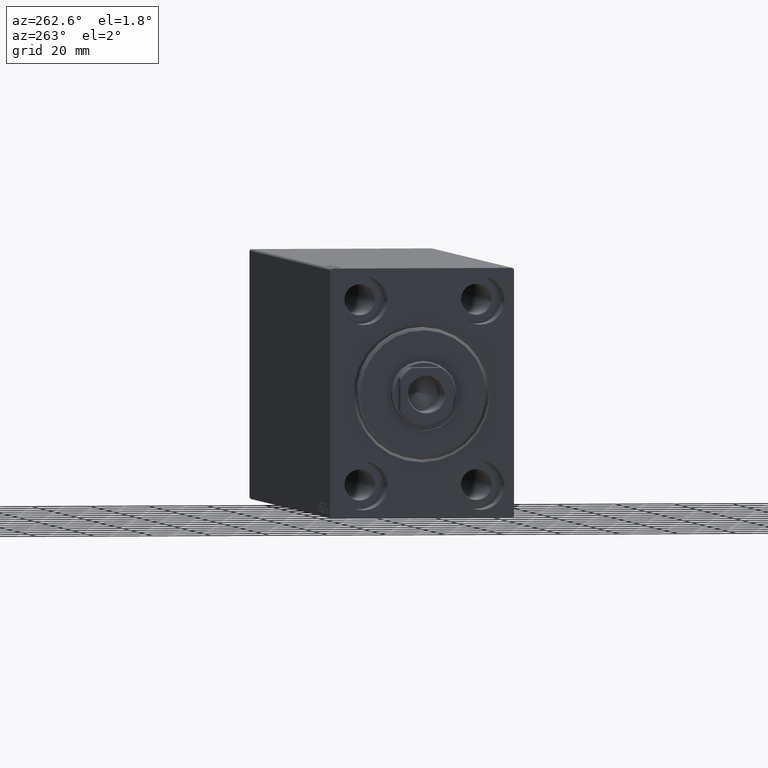
[diagram: clean part render]
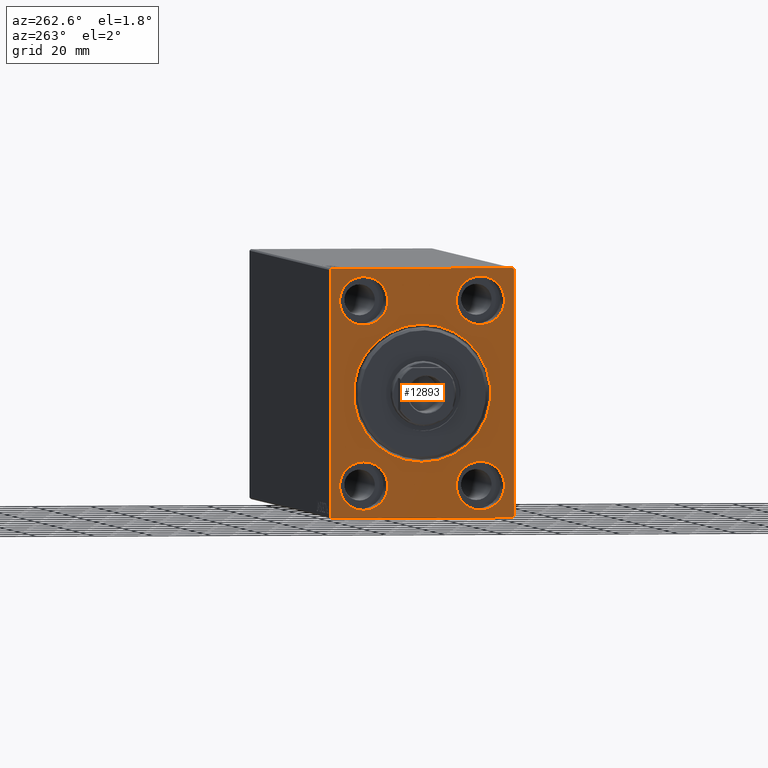
[diagram: same view with one face highlighted and labeled with its STEP entity id]
A machine part, auxiliary view. The second image highlights one B-rep face of the part: STEP entity #12893.
In plain terms, the highlighted planar face has unit normal (1, 0, 0).
Its self-contained STEP definition (entity closure, byte-faithful):
#273 = CARTESIAN_POINT ( 'NONE',  ( 0.000000000000000000, 0.000000000000000000, 0.000000000000000000 ) ) ;
#313 = FACE_BOUND ( 'NONE', #11136, .T. ) ;
#1082 = DIRECTION ( 'NONE',  ( 0.000000000000000000, -0.7071067811865474617, -0.7071067811865474617 ) ) ;
#1209 = CIRCLE ( 'NONE', #9684, 8.249999999999992895 ) ;
#1255 = EDGE_CURVE ( 'NONE', #2972, #42847, #24063, .T. ) ;
#1299 = CARTESIAN_POINT ( 'NONE',  ( 0.000000000000000000, 31.50000000000001421, -42.00000000000000711 ) ) ;
#1509 = ORIENTED_EDGE ( 'NONE', *, *, #39388, .T. ) ;
#1784 = ORIENTED_EDGE ( 'NONE', *, *, #20194, .F. ) ;
#1798 = VECTOR ( 'NONE', #36082, 1000.000000000000000 ) ;
#2403 = CIRCLE ( 'NONE', #21511, 8.249999999999992895 ) ;
#2769 = CIRCLE ( 'NONE', #26791, 8.250000000000000000 ) ;
#2916 = CARTESIAN_POINT ( 'NONE',  ( 0.000000000000000000, -31.00000000000000000, -42.50000000000000711 ) ) ;
#2972 = VERTEX_POINT ( 'NONE', #21490 ) ;
#3643 = VERTEX_POINT ( 'NONE', #5543 ) ;
#3817 = CIRCLE ( 'NONE', #11612, 8.250000000000000000 ) ;
#4063 = CARTESIAN_POINT ( 'NONE',  ( 0.000000000000000000, 0.000000000000000000, 0.000000000000000000 ) ) ;
#4126 = CARTESIAN_POINT ( 'NONE',  ( 0.000000000000000000, 31.00000000000001421, -42.50000000000000711 ) ) ;
#4139 = DIRECTION ( 'NONE',  ( -1.000000000000000000, 0.000000000000000000, 0.000000000000000000 ) ) ;
#4269 = CARTESIAN_POINT ( 'NONE',  ( 0.000000000000000000, 19.99999999999999645, -23.24999999999999289 ) ) ;
#4337 = VECTOR ( 'NONE', #37705, 1000.000000000000114 ) ;
#4839 = DIRECTION ( 'NONE',  ( 0.000000000000000000, 0.000000000000000000, 1.000000000000000000 ) ) ;
#5156 = AXIS2_PLACEMENT_3D ( 'NONE', #38143, #32169, #22015 ) ;
#5237 = ORIENTED_EDGE ( 'NONE', *, *, #15820, .F. ) ;
#5543 = CARTESIAN_POINT ( 'NONE',  ( 0.000000000000000000, -19.99999999999999645, 23.25000000000000355 ) ) ;
#5733 = CARTESIAN_POINT ( 'NONE',  ( 0.000000000000000000, 0.000000000000000000, 0.000000000000000000 ) ) ;
#5954 = DIRECTION ( 'NONE',  ( -1.000000000000000000, 0.000000000000000000, 0.000000000000000000 ) ) ;
#6346 = AXIS2_PLACEMENT_3D ( 'NONE', #273, #10239, #37189 ) ;
#6728 = DIRECTION ( 'NONE',  ( -1.000000000000000000, 0.000000000000000000, 0.000000000000000000 ) ) ;
#6923 = DIRECTION ( 'NONE',  ( 0.000000000000000000, 0.000000000000000000, 1.000000000000000000 ) ) ;
#7371 = DIRECTION ( 'NONE',  ( -1.000000000000000000, 0.000000000000000000, 0.000000000000000000 ) ) ;
#7950 = CARTESIAN_POINT ( 'NONE',  ( 0.000000000000000000, 31.00000000000000000, 42.50000000000000711 ) ) ;
#8468 = EDGE_CURVE ( 'NONE', #20942, #17203, #13633, .T. ) ;
#9009 = ORIENTED_EDGE ( 'NONE', *, *, #37509, .T. ) ;
#9243 = VERTEX_POINT ( 'NONE', #9712 ) ;
#9424 = VECTOR ( 'NONE', #1082, 1000.000000000000114 ) ;
#9592 = CARTESIAN_POINT ( 'NONE',  ( 0.000000000000000000, 19.99999999999999645, -39.74999999999999289 ) ) ;
#9684 = AXIS2_PLACEMENT_3D ( 'NONE', #20372, #41142, #17501 ) ;
#9707 = EDGE_LOOP ( 'NONE', ( #1509, #9009 ) ) ;
#9712 = CARTESIAN_POINT ( 'NONE',  ( 0.000000000000000000, 20.00000000000000355, 23.25000000000000355 ) ) ;
#9832 = CARTESIAN_POINT ( 'NONE',  ( 0.000000000000000000, -31.00000000000000000, 42.49999999999999289 ) ) ;
#10239 = DIRECTION ( 'NONE',  ( 1.000000000000000000, 0.000000000000000000, 0.000000000000000000 ) ) ;
#10491 = PLANE ( 'NONE',  #31316 ) ;
#10497 = AXIS2_PLACEMENT_3D ( 'NONE', #27067, #6728, #33695 ) ;
#10600 = CARTESIAN_POINT ( 'NONE',  ( 0.000000000000000000, 19.99999999999999645, -31.49999999999999289 ) ) ;
#11108 = ORIENTED_EDGE ( 'NONE', *, *, #27688, .F. ) ;
#11136 = EDGE_LOOP ( 'NONE', ( #11108, #38656 ) ) ;
#11612 = AXIS2_PLACEMENT_3D ( 'NONE', #10600, #14576, #27831 ) ;
#12040 = EDGE_CURVE ( 'NONE', #9243, #12889, #24216, .T. ) ;
#12525 = ORIENTED_EDGE ( 'NONE', *, *, #37504, .F. ) ;
#12828 = DIRECTION ( 'NONE',  ( 1.000000000000000000, 0.000000000000000000, 0.000000000000000000 ) ) ;
#12889 = VERTEX_POINT ( 'NONE', #37229 ) ;
#12893 = ADVANCED_FACE ( 'NONE', ( #27499, #31033, #40989, #27727, #313, #40767 ), #10491, .F. ) ;
#13284 = EDGE_CURVE ( 'NONE', #35820, #25613, #22302, .T. ) ;
#13474 = AXIS2_PLACEMENT_3D ( 'NONE', #37213, #7371, #6923 ) ;
#13633 = LINE ( 'NONE', #40369, #4337 ) ;
#14576 = DIRECTION ( 'NONE',  ( -1.000000000000000000, 0.000000000000000000, 0.000000000000000000 ) ) ;
#15009 = EDGE_CURVE ( 'NONE', #33782, #21458, #15944, .T. ) ;
#15193 = ORIENTED_EDGE ( 'NONE', *, *, #26500, .T. ) ;
#15336 = EDGE_CURVE ( 'NONE', #40275, #3643, #2403, .T. ) ;
#15439 = EDGE_LOOP ( 'NONE', ( #28966, #40373 ) ) ;
#15498 = LINE ( 'NONE', #32512, #18670 ) ;
#15652 = ORIENTED_EDGE ( 'NONE', *, *, #24789, .F. ) ;
#15820 = EDGE_CURVE ( 'NONE', #20942, #25613, #15498, .T. ) ;
#15944 = LINE ( 'NONE', #42908, #25689 ) ;
#16439 = LINE ( 'NONE', #18881, #25232 ) ;
#16777 = AXIS2_PLACEMENT_3D ( 'NONE', #34428, #4139, #41719 ) ;
#17203 = VERTEX_POINT ( 'NONE', #24702 ) ;
#17501 = DIRECTION ( 'NONE',  ( 0.000000000000000000, 0.000000000000000000, 1.000000000000000000 ) ) ;
#17536 = CIRCLE ( 'NONE', #10497, 8.249999999999992895 ) ;
#18111 = EDGE_CURVE ( 'NONE', #37570, #21458, #43419, .T. ) ;
#18670 = VECTOR ( 'NONE', #28978, 1000.000000000000000 ) ;
#18881 = CARTESIAN_POINT ( 'NONE',  ( 0.000000000000000000, -31.50000000000000000, 42.49999999999999289 ) ) ;
#19240 = DIRECTION ( 'NONE',  ( 0.000000000000000000, 0.000000000000000000, -1.000000000000000000 ) ) ;
#20037 = EDGE_LOOP ( 'NONE', ( #20259, #21611 ) ) ;
#20194 = EDGE_CURVE ( 'NONE', #32077, #22949, #3817, .T. ) ;
#20259 = ORIENTED_EDGE ( 'NONE', *, *, #15336, .F. ) ;
#20279 = CARTESIAN_POINT ( 'NONE',  ( 0.000000000000000000, 2.877919977996285448E-15, -23.50000000000004619 ) ) ;
#20372 = CARTESIAN_POINT ( 'NONE',  ( 0.000000000000000000, -19.99999999999999645, 31.50000000000000000 ) ) ;
#20883 = DIRECTION ( 'NONE',  ( 1.000000000000000000, 0.000000000000000000, 0.000000000000000000 ) ) ;
#20942 = VERTEX_POINT ( 'NONE', #2916 ) ;
#21194 = CIRCLE ( 'NONE', #6346, 23.50000000000004619 ) ;
#21388 = ORIENTED_EDGE ( 'NONE', *, *, #26917, .F. ) ;
#21458 = VERTEX_POINT ( 'NONE', #9832 ) ;
#21490 = CARTESIAN_POINT ( 'NONE',  ( 0.000000000000000000, -20.00000000000000355, -39.74999999999999289 ) ) ;
#21511 = AXIS2_PLACEMENT_3D ( 'NONE', #42196, #35996, #4839 ) ;
#21611 = ORIENTED_EDGE ( 'NONE', *, *, #24947, .F. ) ;
#22015 = DIRECTION ( 'NONE',  ( 0.000000000000000000, 0.000000000000000000, 1.000000000000000000 ) ) ;
#22302 = LINE ( 'NONE', #1299, #9424 ) ;
#22303 = ORIENTED_EDGE ( 'NONE', *, *, #15009, .T. ) ;
#22596 = CARTESIAN_POINT ( 'NONE',  ( 0.000000000000000000, 31.50000000000001421, -42.50000000000000711 ) ) ;
#22949 = VERTEX_POINT ( 'NONE', #9592 ) ;
#23837 = CIRCLE ( 'NONE', #16777, 8.250000000000000000 ) ;
#24063 = CIRCLE ( 'NONE', #13474, 8.250000000000000000 ) ;
#24216 = CIRCLE ( 'NONE', #5156, 8.249999999999992895 ) ;
#24702 = CARTESIAN_POINT ( 'NONE',  ( 0.000000000000000000, -31.50000000000000000, -42.00000000000000711 ) ) ;
#24768 = ORIENTED_EDGE ( 'NONE', *, *, #8468, .T. ) ;
#24789 = EDGE_CURVE ( 'NONE', #35820, #25126, #31903, .T. ) ;
#24947 = EDGE_CURVE ( 'NONE', #3643, #40275, #1209, .T. ) ;
#25126 = VERTEX_POINT ( 'NONE', #43103 ) ;
#25232 = VECTOR ( 'NONE', #42530, 1000.000000000000000 ) ;
#25613 = VERTEX_POINT ( 'NONE', #4126 ) ;
#25689 = VECTOR ( 'NONE', #26091, 1000.000000000000114 ) ;
#26091 = DIRECTION ( 'NONE',  ( -0.000000000000000000, 0.7071067811865474617, 0.7071067811865474617 ) ) ;
#26163 = DIRECTION ( 'NONE',  ( 0.000000000000000000, -1.000000000000000000, -2.202823461557850341E-16 ) ) ;
#26500 = EDGE_CURVE ( 'NONE', #37570, #25126, #31382, .T. ) ;
#26791 = AXIS2_PLACEMENT_3D ( 'NONE', #36251, #5954, #36676 ) ;
#26917 = EDGE_CURVE ( 'NONE', #33782, #17203, #16439, .T. ) ;
#27067 = CARTESIAN_POINT ( 'NONE',  ( 0.000000000000000000, 20.00000000000000355, 31.50000000000000000 ) ) ;
#27491 = AXIS2_PLACEMENT_3D ( 'NONE', #5733, #12828, #19240 ) ;
#27499 = FACE_BOUND ( 'NONE', #9707, .T. ) ;
#27688 = EDGE_CURVE ( 'NONE', #42847, #2972, #23837, .T. ) ;
#27727 = FACE_BOUND ( 'NONE', #15439, .T. ) ;
#27831 = DIRECTION ( 'NONE',  ( 0.000000000000000000, 0.000000000000000000, 1.000000000000000000 ) ) ;
#28143 = CARTESIAN_POINT ( 'NONE',  ( 0.000000000000000000, -20.00000000000000355, -23.24999999999999289 ) ) ;
#28966 = ORIENTED_EDGE ( 'NONE', *, *, #30375, .F. ) ;
#28978 = DIRECTION ( 'NONE',  ( 0.000000000000000000, 1.000000000000000000, 0.000000000000000000 ) ) ;
#29918 = CARTESIAN_POINT ( 'NONE',  ( 0.000000000000000000, 31.50000000000000000, 42.50000000000000711 ) ) ;
#30323 = CIRCLE ( 'NONE', #27491, 23.50000000000004619 ) ;
#30375 = EDGE_CURVE ( 'NONE', #12889, #9243, #17536, .T. ) ;
#30679 = CARTESIAN_POINT ( 'NONE',  ( 0.000000000000000000, -31.50000000000000000, 41.99999999999999289 ) ) ;
#30808 = EDGE_LOOP ( 'NONE', ( #21388, #22303, #39848, #15193, #15652, #42583, #5237, #24768 ) ) ;
#31033 = FACE_BOUND ( 'NONE', #36619, .T. ) ;
#31130 = CARTESIAN_POINT ( 'NONE',  ( 0.000000000000000000, 31.50000000000001421, -42.00000000000000711 ) ) ;
#31316 = AXIS2_PLACEMENT_3D ( 'NONE', #4063, #20883, #34353 ) ;
#31382 = LINE ( 'NONE', #7950, #41382 ) ;
#31903 = LINE ( 'NONE', #22596, #1798 ) ;
#32040 = VECTOR ( 'NONE', #26163, 1000.000000000000000 ) ;
#32077 = VERTEX_POINT ( 'NONE', #4269 ) ;
#32169 = DIRECTION ( 'NONE',  ( -1.000000000000000000, 0.000000000000000000, 0.000000000000000000 ) ) ;
#32512 = CARTESIAN_POINT ( 'NONE',  ( 0.000000000000000000, -31.50000000000000000, -42.50000000000000711 ) ) ;
#33482 = VERTEX_POINT ( 'NONE', #20279 ) ;
#33695 = DIRECTION ( 'NONE',  ( 0.000000000000000000, 0.000000000000000000, 1.000000000000000000 ) ) ;
#33782 = VERTEX_POINT ( 'NONE', #30679 ) ;
#34353 = DIRECTION ( 'NONE',  ( 0.000000000000000000, 0.000000000000000000, -1.000000000000000000 ) ) ;
#34428 = CARTESIAN_POINT ( 'NONE',  ( 0.000000000000000000, -20.00000000000000355, -31.49999999999999289 ) ) ;
#34474 = DIRECTION ( 'NONE',  ( -0.000000000000000000, 0.7071067811865474617, -0.7071067811865474617 ) ) ;
#35820 = VERTEX_POINT ( 'NONE', #31130 ) ;
#35996 = DIRECTION ( 'NONE',  ( -1.000000000000000000, 0.000000000000000000, 0.000000000000000000 ) ) ;
#36082 = DIRECTION ( 'NONE',  ( 0.000000000000000000, -1.632680918566406300E-16, 1.000000000000000000 ) ) ;
#36251 = CARTESIAN_POINT ( 'NONE',  ( 0.000000000000000000, 19.99999999999999645, -31.49999999999999289 ) ) ;
#36619 = EDGE_LOOP ( 'NONE', ( #1784, #12525 ) ) ;
#36676 = DIRECTION ( 'NONE',  ( 0.000000000000000000, 0.000000000000000000, 1.000000000000000000 ) ) ;
#37189 = DIRECTION ( 'NONE',  ( 0.000000000000000000, 0.000000000000000000, -1.000000000000000000 ) ) ;
#37213 = CARTESIAN_POINT ( 'NONE',  ( 0.000000000000000000, -20.00000000000000355, -31.49999999999999289 ) ) ;
#37229 = CARTESIAN_POINT ( 'NONE',  ( 0.000000000000000000, 20.00000000000000355, 39.74999999999999289 ) ) ;
#37504 = EDGE_CURVE ( 'NONE', #22949, #32077, #2769, .T. ) ;
#37509 = EDGE_CURVE ( 'NONE', #33482, #39820, #30323, .T. ) ;
#37570 = VERTEX_POINT ( 'NONE', #40440 ) ;
#37578 = CARTESIAN_POINT ( 'NONE',  ( 0.000000000000000000, 0.000000000000000000, 23.50000000000004619 ) ) ;
#37705 = DIRECTION ( 'NONE',  ( -0.000000000000000000, -0.7071067811865474617, 0.7071067811865474617 ) ) ;
#38143 = CARTESIAN_POINT ( 'NONE',  ( 0.000000000000000000, 20.00000000000000355, 31.50000000000000000 ) ) ;
#38656 = ORIENTED_EDGE ( 'NONE', *, *, #1255, .F. ) ;
#39388 = EDGE_CURVE ( 'NONE', #39820, #33482, #21194, .T. ) ;
#39820 = VERTEX_POINT ( 'NONE', #37578 ) ;
#39848 = ORIENTED_EDGE ( 'NONE', *, *, #18111, .F. ) ;
#40275 = VERTEX_POINT ( 'NONE', #41281 ) ;
#40369 = CARTESIAN_POINT ( 'NONE',  ( 0.000000000000000000, -31.00000000000000000, -42.50000000000000711 ) ) ;
#40373 = ORIENTED_EDGE ( 'NONE', *, *, #12040, .F. ) ;
#40440 = CARTESIAN_POINT ( 'NONE',  ( 0.000000000000000000, 31.00000000000000000, 42.50000000000000711 ) ) ;
#40767 = FACE_OUTER_BOUND ( 'NONE', #30808, .T. ) ;
#40989 = FACE_BOUND ( 'NONE', #20037, .T. ) ;
#41142 = DIRECTION ( 'NONE',  ( -1.000000000000000000, 0.000000000000000000, 0.000000000000000000 ) ) ;
#41281 = CARTESIAN_POINT ( 'NONE',  ( 0.000000000000000000, -19.99999999999999645, 39.74999999999999289 ) ) ;
#41382 = VECTOR ( 'NONE', #34474, 1000.000000000000114 ) ;
#41719 = DIRECTION ( 'NONE',  ( 0.000000000000000000, 0.000000000000000000, 1.000000000000000000 ) ) ;
#42196 = CARTESIAN_POINT ( 'NONE',  ( 0.000000000000000000, -19.99999999999999645, 31.50000000000000000 ) ) ;
#42530 = DIRECTION ( 'NONE',  ( 0.000000000000000000, 0.000000000000000000, -1.000000000000000000 ) ) ;
#42583 = ORIENTED_EDGE ( 'NONE', *, *, #13284, .T. ) ;
#42847 = VERTEX_POINT ( 'NONE', #28143 ) ;
#42908 = CARTESIAN_POINT ( 'NONE',  ( 0.000000000000000000, -31.50000000000000000, 41.99999999999999289 ) ) ;
#43103 = CARTESIAN_POINT ( 'NONE',  ( 0.000000000000000000, 31.50000000000000000, 42.00000000000000711 ) ) ;
#43419 = LINE ( 'NONE', #29918, #32040 ) ;